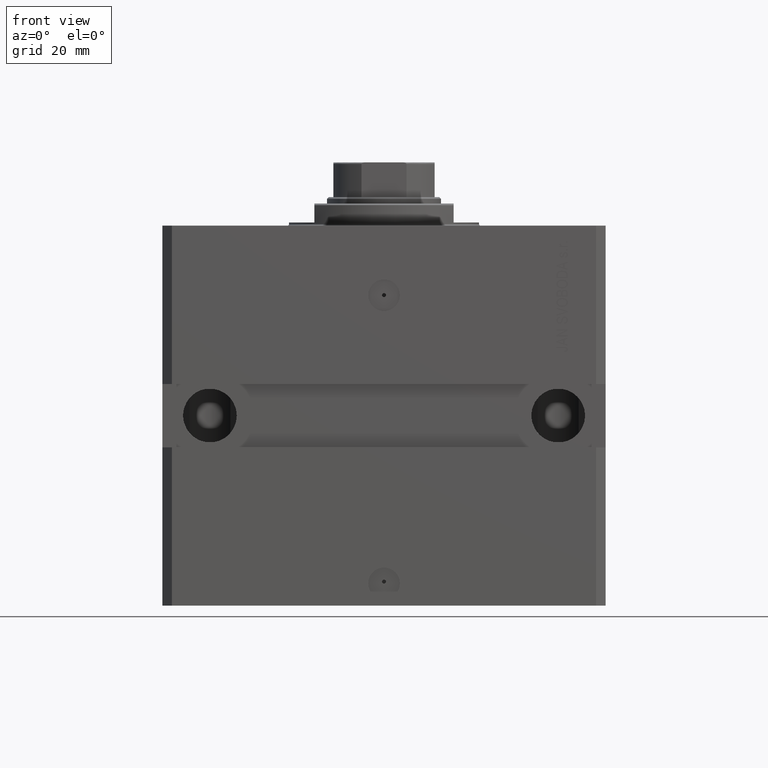
[diagram: clean part render]
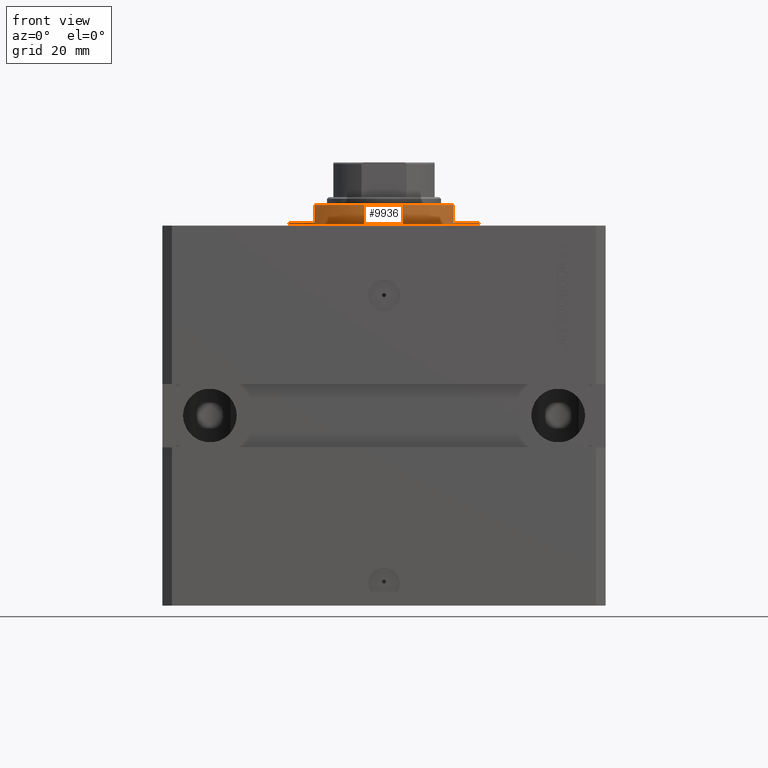
[diagram: same view with one face highlighted and labeled with its STEP entity id]
A machine part, front view. The second image highlights one B-rep face of the part: STEP entity #9936.
In plain terms, the highlighted cylindrical surface (partial cylindrical patch) has radius 30 mm, axis along (0, 0, -1).
Its self-contained STEP definition (entity closure, byte-faithful):
#30 = EDGE_CURVE ( 'NONE', #48304, #6749, #24835, .T. ) ;
#765 = ORIENTED_EDGE ( 'NONE', *, *, #26078, .T. ) ;
#1108 = FACE_OUTER_BOUND ( 'NONE', #44156, .T. ) ;
#1329 = ORIENTED_EDGE ( 'NONE', *, *, #47685, .T. ) ;
#1598 = DIRECTION ( 'NONE',  ( 0.000000000000000000, 0.000000000000000000, -1.000000000000000000 ) ) ;
#2138 = DIRECTION ( 'NONE',  ( 0.000000000000000000, 0.000000000000000000, -1.000000000000000000 ) ) ;
#3526 = VECTOR ( 'NONE', #2138, 1000.000000000000000 ) ;
#6749 = VERTEX_POINT ( 'NONE', #41033 ) ;
#7835 = LINE ( 'NONE', #37438, #47468 ) ;
#9243 = VERTEX_POINT ( 'NONE', #32090 ) ;
#9401 = AXIS2_PLACEMENT_3D ( 'NONE', #38861, #1598, #35632 ) ;
#9932 = EDGE_CURVE ( 'NONE', #48304, #20454, #41745, .T. ) ;
#9936 = ADVANCED_FACE ( 'NONE', ( #1108 ), #27020, .T. ) ;
#10073 = ORIENTED_EDGE ( 'NONE', *, *, #18318, .T. ) ;
#10573 = DIRECTION ( 'NONE',  ( 0.000000000000000000, 0.000000000000000000, -1.000000000000000000 ) ) ;
#10742 = CARTESIAN_POINT ( 'NONE',  ( 0.000000000000000000, 0.000000000000000000, -6.500000000000006217 ) ) ;
#10776 = DIRECTION ( 'NONE',  ( 1.000000000000000000, 0.000000000000000000, 0.000000000000000000 ) ) ;
#11816 = CARTESIAN_POINT ( 'NONE',  ( 30.00000000000000000, 0.000000000000000000, -1.000000000000000000 ) ) ;
#11985 = DIRECTION ( 'NONE',  ( -0.000000000000000000, -0.000000000000000000, 1.000000000000000000 ) ) ;
#12120 = ORIENTED_EDGE ( 'NONE', *, *, #30, .T. ) ;
#12778 = CARTESIAN_POINT ( 'NONE',  ( 22.00000000000000000, -20.39607805437114152, -6.500000000000006217 ) ) ;
#12988 = AXIS2_PLACEMENT_3D ( 'NONE', #10742, #44532, #32931 ) ;
#14035 = LINE ( 'NONE', #44361, #41259 ) ;
#14799 = CARTESIAN_POINT ( 'NONE',  ( 0.000000000000000000, 0.000000000000000000, -1.000000000000000000 ) ) ;
#16496 = ORIENTED_EDGE ( 'NONE', *, *, #17454, .F. ) ;
#16660 = DIRECTION ( 'NONE',  ( 1.000000000000000000, 0.000000000000000000, 0.000000000000000000 ) ) ;
#17454 = EDGE_CURVE ( 'NONE', #25909, #31497, #7835, .T. ) ;
#18318 = EDGE_CURVE ( 'NONE', #33065, #9243, #14035, .T. ) ;
#20454 = VERTEX_POINT ( 'NONE', #26302 ) ;
#21422 = VERTEX_POINT ( 'NONE', #12778 ) ;
#21517 = EDGE_CURVE ( 'NONE', #20454, #21422, #41074, .T. ) ;
#21771 = AXIS2_PLACEMENT_3D ( 'NONE', #45306, #30012, #10776 ) ;
#22305 = EDGE_CURVE ( 'NONE', #33065, #25909, #45302, .T. ) ;
#23144 = DIRECTION ( 'NONE',  ( 0.000000000000000000, 0.000000000000000000, -1.000000000000000000 ) ) ;
#24289 = CARTESIAN_POINT ( 'NONE',  ( 0.000000000000000000, 0.000000000000000000, -7.000000000000000000 ) ) ;
#24835 = LINE ( 'NONE', #25576, #37595 ) ;
#25338 = ORIENTED_EDGE ( 'NONE', *, *, #22305, .F. ) ;
#25576 = CARTESIAN_POINT ( 'NONE',  ( 30.00000000000000000, 0.000000000000000000, -7.000000000000000000 ) ) ;
#25909 = VERTEX_POINT ( 'NONE', #46758 ) ;
#26020 = CARTESIAN_POINT ( 'NONE',  ( 22.00000000000000000, -20.39607805437114152, -7.000000000000000000 ) ) ;
#26078 = EDGE_CURVE ( 'NONE', #9243, #21422, #38980, .T. ) ;
#26302 = CARTESIAN_POINT ( 'NONE',  ( 22.00000000000000000, -20.39607805437114152, -1.000000000000000000 ) ) ;
#27020 = CYLINDRICAL_SURFACE ( 'NONE', #36983, 30.00000000000000000 ) ;
#30012 = DIRECTION ( 'NONE',  ( -0.000000000000000000, -0.000000000000000000, -1.000000000000000000 ) ) ;
#30034 = DIRECTION ( 'NONE',  ( -0.000000000000000000, -0.000000000000000000, 1.000000000000000000 ) ) ;
#31497 = VERTEX_POINT ( 'NONE', #33926 ) ;
#32090 = CARTESIAN_POINT ( 'NONE',  ( -22.00000000000000000, -20.39607805437114152, -6.500000000000006217 ) ) ;
#32242 = DIRECTION ( 'NONE',  ( -0.000000000000000000, -0.000000000000000000, 1.000000000000000000 ) ) ;
#32699 = AXIS2_PLACEMENT_3D ( 'NONE', #14799, #23144, #37237 ) ;
#32931 = DIRECTION ( 'NONE',  ( -1.000000000000000000, 0.000000000000000000, 0.000000000000000000 ) ) ;
#33065 = VERTEX_POINT ( 'NONE', #33759 ) ;
#33759 = CARTESIAN_POINT ( 'NONE',  ( -22.00000000000000000, -20.39607805437114152, -1.000000000000000000 ) ) ;
#33926 = CARTESIAN_POINT ( 'NONE',  ( -30.00000000000000000, 3.673940397442059178E-15, -0.4999999999999995559 ) ) ;
#35632 = DIRECTION ( 'NONE',  ( -1.000000000000000000, 0.000000000000000000, 0.000000000000000000 ) ) ;
#36983 = AXIS2_PLACEMENT_3D ( 'NONE', #24289, #11985, #16660 ) ;
#37237 = DIRECTION ( 'NONE',  ( -1.000000000000000000, 0.000000000000000000, 0.000000000000000000 ) ) ;
#37438 = CARTESIAN_POINT ( 'NONE',  ( -30.00000000000000000, 3.673940397442059178E-15, -7.000000000000000000 ) ) ;
#37595 = VECTOR ( 'NONE', #32242, 1000.000000000000000 ) ;
#38861 = CARTESIAN_POINT ( 'NONE',  ( 0.000000000000000000, 0.000000000000000000, -1.000000000000000000 ) ) ;
#38980 = CIRCLE ( 'NONE', #12988, 30.00000000000000000 ) ;
#40715 = ORIENTED_EDGE ( 'NONE', *, *, #9932, .F. ) ;
#41033 = CARTESIAN_POINT ( 'NONE',  ( 30.00000000000000000, 0.000000000000000000, -0.4999999999999995559 ) ) ;
#41074 = LINE ( 'NONE', #26020, #3526 ) ;
#41259 = VECTOR ( 'NONE', #10573, 1000.000000000000000 ) ;
#41745 = CIRCLE ( 'NONE', #9401, 30.00000000000000000 ) ;
#43025 = ORIENTED_EDGE ( 'NONE', *, *, #21517, .F. ) ;
#44156 = EDGE_LOOP ( 'NONE', ( #16496, #25338, #10073, #765, #43025, #40715, #12120, #1329 ) ) ;
#44361 = CARTESIAN_POINT ( 'NONE',  ( -22.00000000000000000, -20.39607805437114152, -7.000000000000000000 ) ) ;
#44532 = DIRECTION ( 'NONE',  ( 0.000000000000000000, 0.000000000000000000, 1.000000000000000000 ) ) ;
#45302 = CIRCLE ( 'NONE', #32699, 30.00000000000000000 ) ;
#45306 = CARTESIAN_POINT ( 'NONE',  ( 0.000000000000000000, 0.000000000000000000, -0.4999999999999995559 ) ) ;
#45376 = CIRCLE ( 'NONE', #21771, 30.00000000000000000 ) ;
#46758 = CARTESIAN_POINT ( 'NONE',  ( -30.00000000000000000, 3.673940397442059178E-15, -1.000000000000000000 ) ) ;
#47468 = VECTOR ( 'NONE', #30034, 1000.000000000000000 ) ;
#47685 = EDGE_CURVE ( 'NONE', #6749, #31497, #45376, .T. ) ;
#48304 = VERTEX_POINT ( 'NONE', #11816 ) ;